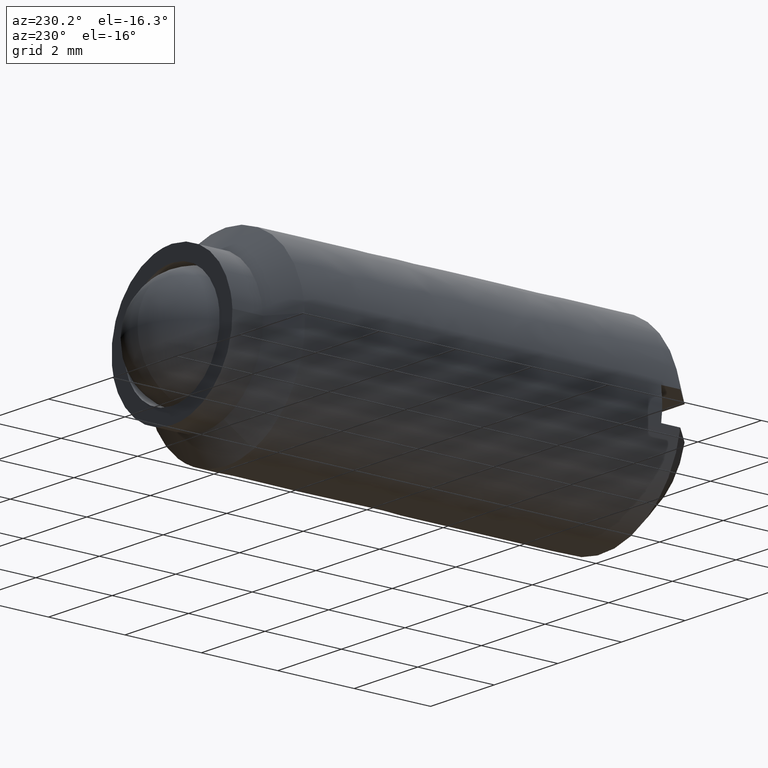
[diagram: clean part render]
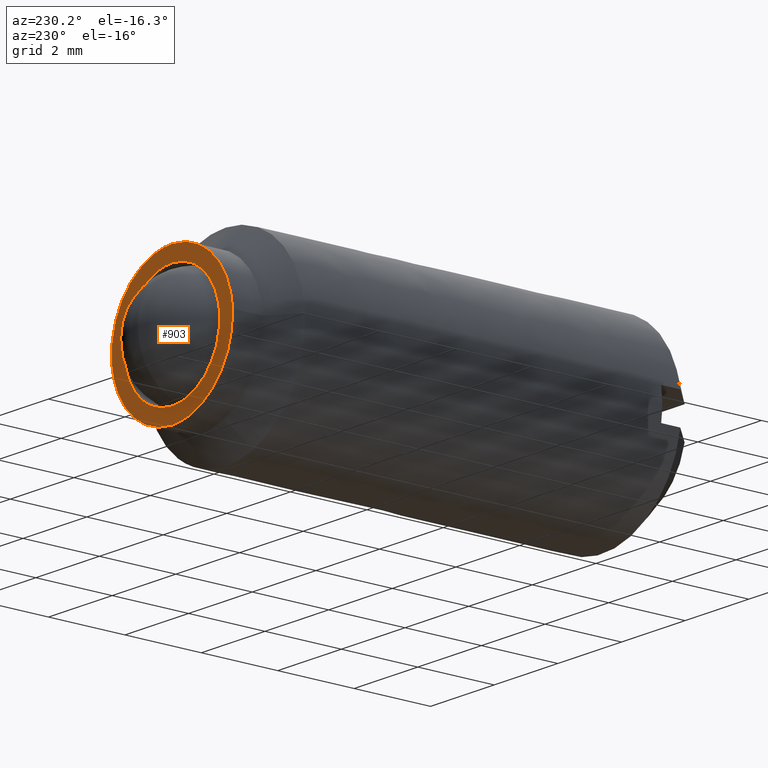
[diagram: same view with one face highlighted and labeled with its STEP entity id]
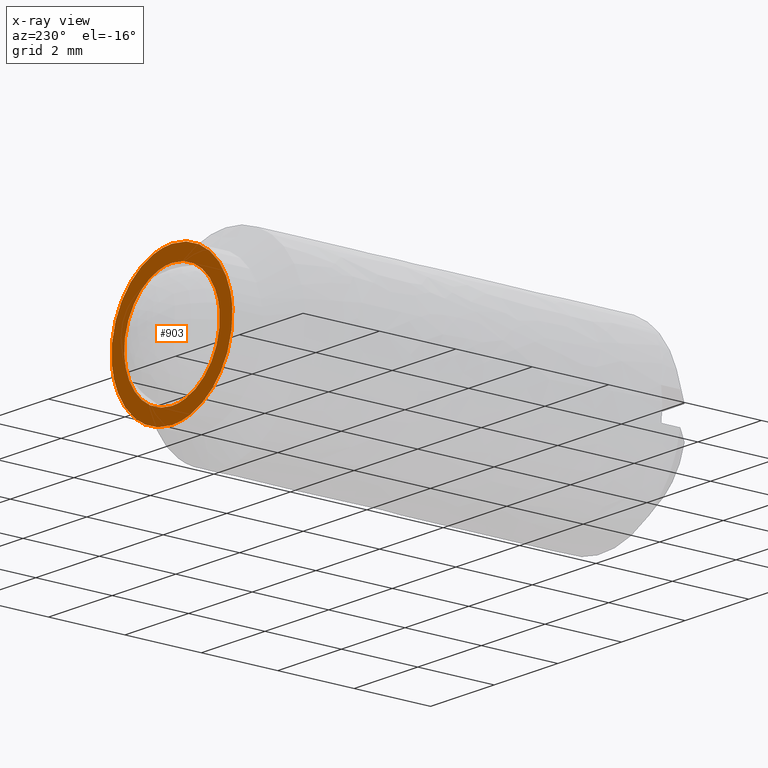
[diagram: x-ray of the same camera — body ghosted, the highlighted face saturated]
A machine part, auxiliary view. The second image highlights one B-rep face of the part: STEP entity #903.
The next image is the same camera in x-ray: the body ghosted, the highlighted face saturated — about 0% of this face is hidden behind the body in this view.
In plain terms, the highlighted face is a freeform B-spline surface patch.
Its self-contained STEP definition (entity closure, byte-faithful):
#100=CARTESIAN_POINT('',(1.497202297505339,-0.900000000000012,-0.091571176371491));
#101=VERTEX_POINT('',#100);
#107=CARTESIAN_POINT('',(0.0,-0.900000000000012,-1.500000000000000));
#108=VERTEX_POINT('',#107);
#109=CARTESIAN_POINT('',(0.0,-0.900000000000012,-1.500000000000000));
#110=CARTESIAN_POINT('',(1.411060642213509,-0.900000000000012,-1.500000000000001));
#111=CARTESIAN_POINT('',(1.497202297505339,-0.900000000000012,-0.091571176371491));
#119=(BOUNDED_CURVE()B_SPLINE_CURVE(2,(#109,#110,#111),.UNSPECIFIED.,.F.,.U.)B_SPLINE_CURVE_WITH_KNOTS((3,3),(0.500000000000000,0.739333150430983),.UNSPECIFIED.)CURVE()GEOMETRIC_REPRESENTATION_ITEM()RATIONAL_B_SPLINE_CURVE((1.0,0.719603772806021,0.976072444998415))REPRESENTATION_ITEM(''));
#120=EDGE_CURVE('',#108,#101,#119,.T.);
#122=CARTESIAN_POINT('',(-1.489514289544791,-0.900000000000012,0.177051351991101));
#123=VERTEX_POINT('',#122);
#124=CARTESIAN_POINT('',(-1.489514289544791,-0.900000000000012,0.177051351991101));
#125=CARTESIAN_POINT('',(-1.500000000000000,-0.900000000000012,0.088836179483891));
#126=CARTESIAN_POINT('',(-1.500000000000000,-0.900000000000012,0.0));
#127=CARTESIAN_POINT('',(-1.500000000000000,-0.900000000000012,-1.500000000000000));
#128=CARTESIAN_POINT('',(0.0,-0.900000000000012,-1.500000000000000));
#136=(BOUNDED_CURVE()B_SPLINE_CURVE(2,(#124,#125,#126,#127,#128),.UNSPECIFIED.,.F.,.U.)B_SPLINE_CURVE_WITH_KNOTS((3,2,3),(0.229562473514291,0.250000000000000,0.500000000000000),.UNSPECIFIED.)CURVE()GEOMETRIC_REPRESENTATION_ITEM()RATIONAL_B_SPLINE_CURVE((0.956026754185233,0.976055948332062,1.0,0.707106781186548,1.0))REPRESENTATION_ITEM(''));
#137=EDGE_CURVE('',#123,#108,#136,.T.);
#181=CARTESIAN_POINT('',(0.0,-0.900000000000012,1.500000000000000));
#182=VERTEX_POINT('',#181);
#183=CARTESIAN_POINT('',(0.0,-0.900000000000012,1.500000000000000));
#184=CARTESIAN_POINT('',(-1.332261788916308,-0.900000000000012,1.499999999999999));
#185=CARTESIAN_POINT('',(-1.489514289544791,-0.900000000000012,0.177051351991101));
#193=(BOUNDED_CURVE()B_SPLINE_CURVE(2,(#183,#184,#185),.UNSPECIFIED.,.F.,.U.)B_SPLINE_CURVE_WITH_KNOTS((3,3),(0.0,0.229562473514291),.UNSPECIFIED.)CURVE()GEOMETRIC_REPRESENTATION_ITEM()RATIONAL_B_SPLINE_CURVE((1.0,0.731050832854486,0.956026754185233))REPRESENTATION_ITEM(''));
#194=EDGE_CURVE('',#182,#123,#193,.T.);
#196=CARTESIAN_POINT('',(1.497202297505339,-0.900000000000012,-0.091571176371491));
#197=CARTESIAN_POINT('',(1.500000000000000,-0.900000000000012,-0.045828326193265));
#198=CARTESIAN_POINT('',(1.500000000000000,-0.900000000000012,0.0));
#199=CARTESIAN_POINT('',(1.500000000000000,-0.900000000000012,1.500000000000000));
#200=CARTESIAN_POINT('',(0.0,-0.900000000000012,1.500000000000000));
#208=(BOUNDED_CURVE()B_SPLINE_CURVE(2,(#196,#197,#198,#199,#200),.UNSPECIFIED.,.F.,.U.)B_SPLINE_CURVE_WITH_KNOTS((3,2,3),(0.739333150430983,0.750000000000000,1.0),.UNSPECIFIED.)CURVE()GEOMETRIC_REPRESENTATION_ITEM()RATIONAL_B_SPLINE_CURVE((0.976072444998415,0.987503008380527,1.0,0.707106781186548,1.0))REPRESENTATION_ITEM(''));
#209=EDGE_CURVE('',#101,#182,#208,.T.);
#252=CARTESIAN_POINT('',(1.886718476477220,-0.899999999999935,-0.224261879304770));
#253=VERTEX_POINT('',#252);
#254=CARTESIAN_POINT('',(0.0,-0.900000000000000,1.899999999999999));
#255=VERTEX_POINT('',#254);
#256=CARTESIAN_POINT('',(1.886718476477220,-0.899999999999935,-0.224261879304770));
#257=CARTESIAN_POINT('',(1.900000000000000,-0.900000000000000,-0.112524227329348));
#258=CARTESIAN_POINT('',(1.900000000000000,-0.900000000000000,-8.511014E-016));
#259=CARTESIAN_POINT('',(1.900000000000000,-0.900000000000000,1.899999999999998));
#260=CARTESIAN_POINT('',(0.0,-0.900000000000000,1.899999999999999));
#268=(BOUNDED_CURVE()B_SPLINE_CURVE(2,(#256,#257,#258,#259,#260),.UNSPECIFIED.,.F.,.U.)B_SPLINE_CURVE_WITH_KNOTS((3,2,3),(0.229562757159565,0.250000000000000,0.500000000000000),.UNSPECIFIED.)CURVE()GEOMETRIC_REPRESENTATION_ITEM()RATIONAL_B_SPLINE_CURVE((0.956027310142333,0.976056280643172,1.0,0.707106781186547,1.0))REPRESENTATION_ITEM(''));
#269=EDGE_CURVE('',#253,#255,#268,.T.);
#271=CARTESIAN_POINT('',(-1.896456117001057,-0.900000000000000,0.115992225124233));
#272=VERTEX_POINT('',#271);
#273=CARTESIAN_POINT('',(0.0,-0.900000000000000,1.899999999999999));
#274=CARTESIAN_POINT('',(-1.787341527105691,-0.900000000000000,1.899999999999999));
#275=CARTESIAN_POINT('',(-1.896456117001057,-0.900000000000000,0.115992225124233));
#283=(BOUNDED_CURVE()B_SPLINE_CURVE(2,(#273,#274,#275),.UNSPECIFIED.,.F.,.U.)B_SPLINE_CURVE_WITH_KNOTS((3,3),(0.500000000000000,0.739332962240510),.UNSPECIFIED.)CURVE()GEOMETRIC_REPRESENTATION_ITEM()RATIONAL_B_SPLINE_CURVE((1.0,0.719603993284874,0.976072041670077))REPRESENTATION_ITEM(''));
#284=EDGE_CURVE('',#255,#272,#283,.T.);
#355=CARTESIAN_POINT('',(0.0,-0.900000000000000,-1.900000000000001));
#356=VERTEX_POINT('',#355);
#357=CARTESIAN_POINT('',(0.0,-0.900000000000000,-1.900000000000001));
#358=CARTESIAN_POINT('',(1.687534451488845,-0.900000000000000,-1.900000000000002));
#359=CARTESIAN_POINT('',(1.886718476477220,-0.899999999999935,-0.224261879304770));
#367=(BOUNDED_CURVE()B_SPLINE_CURVE(2,(#357,#358,#359),.UNSPECIFIED.,.F.,.U.)B_SPLINE_CURVE_WITH_KNOTS((3,3),(0.0,0.229562757159565),.UNSPECIFIED.)CURVE()GEOMETRIC_REPRESENTATION_ITEM()RATIONAL_B_SPLINE_CURVE((1.0,0.731050500543376,0.956027310142333))REPRESENTATION_ITEM(''));
#368=EDGE_CURVE('',#356,#253,#367,.T.);
#417=CARTESIAN_POINT('',(-1.896456117001057,-0.900000000000000,0.115992225124233));
#418=CARTESIAN_POINT('',(-1.900000000000000,-0.900000000000000,0.058050250275346));
#419=CARTESIAN_POINT('',(-1.900000000000000,-0.900000000000000,-8.511014E-016));
#420=CARTESIAN_POINT('',(-1.900000000000000,-0.900000000000000,-1.900000000000001));
#421=CARTESIAN_POINT('',(0.0,-0.900000000000000,-1.900000000000001));
#429=(BOUNDED_CURVE()B_SPLINE_CURVE(2,(#417,#418,#419,#420,#421),.UNSPECIFIED.,.F.,.U.)B_SPLINE_CURVE_WITH_KNOTS((3,2,3),(0.739332962240511,0.750000000000000,1.0),.UNSPECIFIED.)CURVE()GEOMETRIC_REPRESENTATION_ITEM()RATIONAL_B_SPLINE_CURVE((0.976072041670080,0.987502787901675,1.0,0.707106781186547,1.0))REPRESENTATION_ITEM(''));
#430=EDGE_CURVE('',#272,#356,#429,.T.);
#886=CARTESIAN_POINT('',(-2.089763748323672,-0.900000000000000,-2.089809992634863));
#887=CARTESIAN_POINT('',(-2.089763748323672,-0.900000000000000,2.089810094558804));
#888=CARTESIAN_POINT('',(2.089775435602419,-0.900000000000000,-2.089809992634863));
#889=CARTESIAN_POINT('',(2.089775435602419,-0.900000000000000,2.089810094558804));
#890=B_SPLINE_SURFACE_WITH_KNOTS('',1,1,((#886,#888),(#887,#889)),.UNSPECIFIED.,.F.,.F.,.U.,(2,2),(2,2),(0.0,4.179620087193667),(0.0,4.179539183926091),.UNSPECIFIED.);
#891=ORIENTED_EDGE('',*,*,#430,.F.);
#892=ORIENTED_EDGE('',*,*,#284,.F.);
#893=ORIENTED_EDGE('',*,*,#269,.F.);
#894=ORIENTED_EDGE('',*,*,#368,.F.);
#895=EDGE_LOOP('',(#891,#892,#893,#894));
#896=FACE_OUTER_BOUND('',#895,.T.);
#897=ORIENTED_EDGE('',*,*,#120,.T.);
#898=ORIENTED_EDGE('',*,*,#209,.T.);
#899=ORIENTED_EDGE('',*,*,#194,.T.);
#900=ORIENTED_EDGE('',*,*,#137,.T.);
#901=EDGE_LOOP('',(#897,#898,#899,#900));
#902=FACE_BOUND('',#901,.T.);
#903=ADVANCED_FACE('',(#896,#902),#890,.T.);